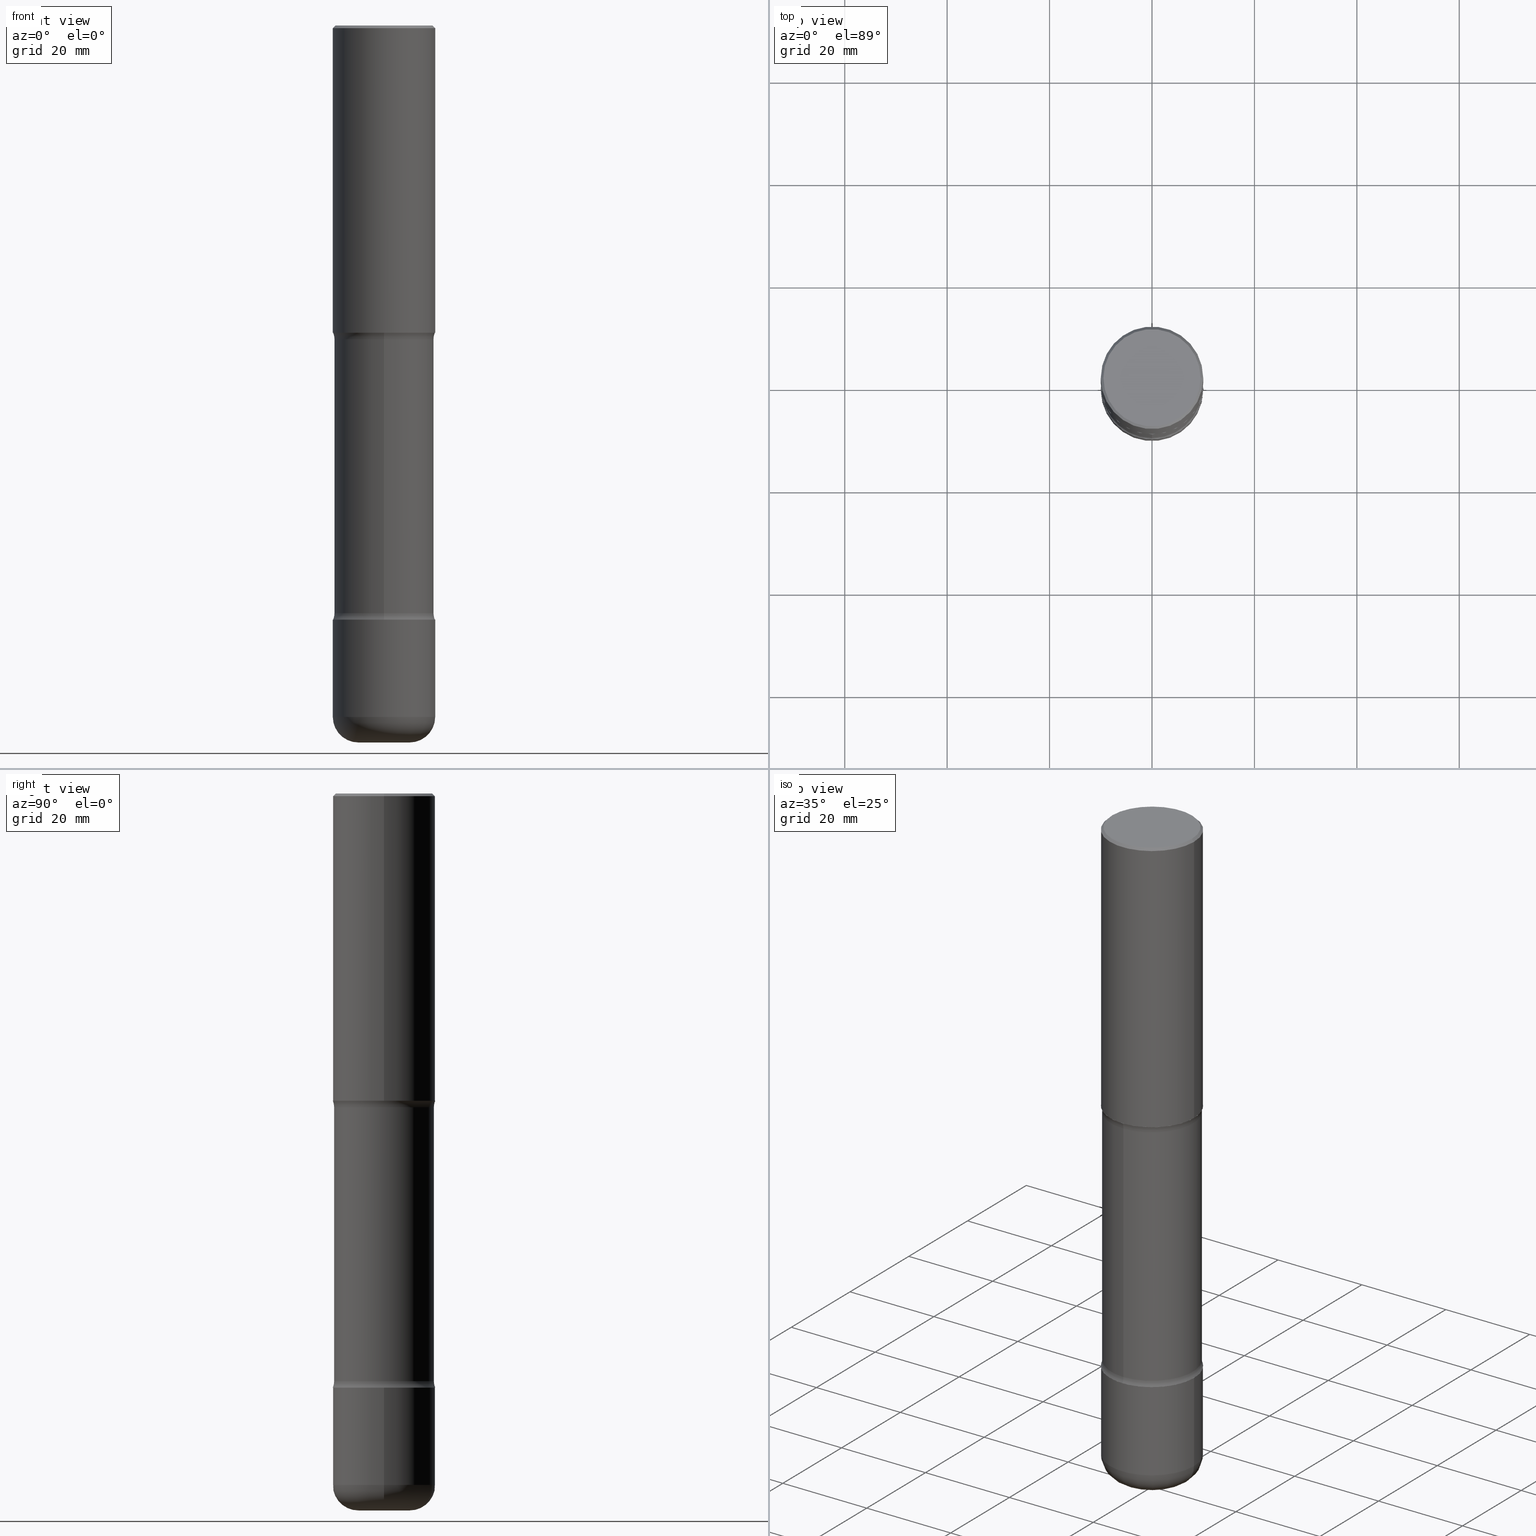
[diagram: canonical four-view strip — front | top / right | iso, engineering-drawing reading convention]
A machine part, canonical four-view strip (front | top / right | iso — engineering-drawing reading convention). The complete STEP part file that produces these views, byte-faithful:
ISO-10303-21;
HEADER;
FILE_DESCRIPTION (( 'STEP AP203' ),
    '1' );
FILE_NAME ('46943.STEP',
    '2024-03-02T06:10:01',
    ( '' ),
    ( '' ),
    'SwSTEP 2.0',
    'SolidWorks 2023',
    '' );
FILE_SCHEMA (( 'CONFIG_CONTROL_DESIGN' ));
ENDSEC;

DATA;
#1 = ADVANCED_BREP_SHAPE_REPRESENTATION ( '46943', ( #486, #104, #484, #470 ), #137 ) ;
#2 = ORIENTED_EDGE ( 'NONE', *, *, #350, .T. ) ;
#3 = EDGE_CURVE ( 'NONE', #74, #17, #419, .T. ) ;
#4 = AXIS2_PLACEMENT_3D ( 'NONE', #15, #144, #134 ) ;
#5 = AXIS2_PLACEMENT_3D ( 'NONE', #487, #259, #165 ) ;
#6 = CYLINDRICAL_SURFACE ( 'NONE', #523, 0.3835000000000001741 ) ;
#7 = LINE ( 'NONE', #211, #413 ) ;
#8 = PLANE ( 'NONE',  #365 ) ;
#9 = FACE_OUTER_BOUND ( 'NONE', #406, .T. ) ;
#10 = CARTESIAN_POINT ( 'NONE',  ( 2.677966186892819583E-15, 0.3834999999999810227, -5.511800000000000921 ) ) ;
#11 = EDGE_CURVE ( 'NONE', #288, #30, #324, .T. ) ;
#12 = CIRCLE ( 'NONE', #291, 0.1250000000000000278 ) ;
#13 = CARTESIAN_POINT ( 'NONE',  ( 1.356902450771305887E-28, -1.911533349202580181E-14, -5.511800000000000033 ) ) ;
#14 = SECURITY_CLASSIFICATION ( '', '', #113 ) ;
#15 = CARTESIAN_POINT ( 'NONE',  ( 0.1968000000000004746, -1.993112122278608958E-14, -5.314899999999998847 ) ) ;
#16 = FACE_OUTER_BOUND ( 'NONE', #73, .T. ) ;
#17 = VERTEX_POINT ( 'NONE', #467 ) ;
#18 = EDGE_CURVE ( 'NONE', #138, #17, #416, .T. ) ;
#19 = DIRECTION ( 'NONE',  ( -2.445468806185136597E-29, 3.491481338843145583E-15, 1.000000000000000000 ) ) ;
#20 = CALENDAR_DATE ( 2024, 2, 3 ) ;
#21 = DIRECTION ( 'NONE',  ( 2.540811743831259279E-29, -3.354944825550891508E-15, -1.000000000000000000 ) ) ;
#22 = ORIENTED_EDGE ( 'NONE', *, *, #89, .T. ) ;
#23 = ORIENTED_EDGE ( 'NONE', *, *, #224, .T. ) ;
#24 = DIRECTION ( 'NONE',  ( 6.982962677686265133E-15, 1.000000000000000000, -2.849385130288669478E-15 ) ) ;
#25 = CARTESIAN_POINT ( 'NONE',  ( 5.566483839342124878E-29, -8.548599269470712439E-15, -2.362200000000000077 ) ) ;
#26 = ORIENTED_EDGE ( 'NONE', *, *, #287, .F. ) ;
#27 = ADVANCED_FACE ( 'NONE', ( #380 ), #166, .F. ) ;
#28 = DIRECTION ( 'NONE',  ( 2.540811743831259279E-29, -3.354944825550891508E-15, -1.000000000000000000 ) ) ;
#29 = PRODUCT_DEFINITION_SHAPE ( 'NONE', 'NONE',  #427 ) ;
#30 = VERTEX_POINT ( 'NONE', #128 ) ;
#31 = CONICAL_SURFACE ( 'NONE', #273, 0.3937000000000000499, 0.7853981633974473908 ) ;
#32 = ORIENTED_EDGE ( 'NONE', *, *, #187, .T. ) ;
#33 = ADVANCED_FACE ( 'NONE', ( #481 ), #261, .T. ) ;
#34 = VERTEX_POINT ( 'NONE', #123 ) ;
#35 = ORIENTED_EDGE ( 'NONE', *, *, #498, .F. ) ;
#36 = CIRCLE ( 'NONE', #239, 0.3835000000000002296 ) ;
#37 = PERSON_AND_ORGANIZATION ( #316, #531 ) ;
#38 = ORIENTED_EDGE ( 'NONE', *, *, #423, .F. ) ;
#39 = EDGE_CURVE ( 'NONE', #133, #442, #290, .T. ) ;
#40 = LINE ( 'NONE', #172, #403 ) ;
#41 = AXIS2_PLACEMENT_3D ( 'NONE', #100, #178, #232 ) ;
#42 = CARTESIAN_POINT ( 'NONE',  ( 0.3937000000000004385, -2.749192406205086372E-15, 1.919750796630862133E-29 ) ) ;
#43 = DIRECTION ( 'NONE',  ( 1.000000000000000000, -6.982962677686266711E-15, 0.000000000000000000 ) ) ;
#44 = CARTESIAN_POINT ( 'NONE',  ( 1.347893496593123422E-28, -1.924434684343564562E-14, -5.511799999999999145 ) ) ;
#45 = ADVANCED_FACE ( 'NONE', ( #425 ), #375, .T. ) ;
#46 = LINE ( 'NONE', #10, #429 ) ;
#47 = DIRECTION ( 'NONE',  ( 2.540811743831259279E-29, -3.354944825550891508E-15, -1.000000000000000000 ) ) ;
#48 = TOROIDAL_SURFACE ( 'NONE', #356, 0.5085000000000001741, 0.1249999999999999584 ) ;
#49 = CARTESIAN_POINT ( 'NONE',  ( 5.692143870584579365E-29, -8.714523593702518262E-15, -2.411656647682592247 ) ) ;
#50 = EDGE_LOOP ( 'NONE', ( #90, #547, #234, #103 ) ) ;
#51 = ADVANCED_FACE ( 'NONE', ( #417 ), #474, .F. ) ;
#52 = CARTESIAN_POINT ( 'NONE',  ( 2.749192406205197601E-15, 0.3936999999999844513, -4.566900000000001292 ) ) ;
#53 = ORIENTED_EDGE ( 'NONE', *, *, #39, .F. ) ;
#54 = CARTESIAN_POINT ( 'NONE',  ( 1.104255145972444542E-28, -1.577932180213095535E-14, -4.517443352317408234 ) ) ;
#55 = LENGTH_MEASURE_WITH_UNIT ( LENGTH_MEASURE( 0.02539999999999999897 ), #443 );
#56 = ORIENTED_EDGE ( 'NONE', *, *, #238, .F. ) ;
#57 = DIRECTION ( 'NONE',  ( 1.000000000000000000, -6.982962677686266711E-15, 4.876176775795935793E-29 ) ) ;
#58 = AXIS2_PLACEMENT_3D ( 'NONE', #303, #297, #351 ) ;
#59 = TOROIDAL_SURFACE ( 'NONE', #5, 0.5085000000000002851, 0.1250000000000000278 ) ;
#60 = EDGE_LOOP ( 'NONE', ( #22, #444, #260, #332 ) ) ;
#61 = DIRECTION ( 'NONE',  ( 2.540811743831259279E-29, -3.354944825550891508E-15, -1.000000000000000000 ) ) ;
#62 = ADVANCED_FACE ( 'NONE', ( #9 ), #254, .F. ) ;
#63 = ORIENTED_EDGE ( 'NONE', *, *, #447, .T. ) ;
#64 = DIRECTION ( 'NONE',  ( 2.438088387897960049E-29, -3.491481338843145188E-15, -1.000000000000000000 ) ) ;
#65 = ORIENTED_EDGE ( 'NONE', *, *, #350, .F. ) ;
#66 = DIRECTION ( 'NONE',  ( -2.445468806185136877E-29, 3.491481338843145188E-15, 1.000000000000000000 ) ) ;
#67 = DIRECTION ( 'NONE',  ( 1.000000000000000000, -6.982962677686266711E-15, 4.876176775795935793E-29 ) ) ;
#68 = EDGE_LOOP ( 'NONE', ( #508, #196 ) ) ;
#69 = CIRCLE ( 'NONE', #384, 0.3937000000000004940 ) ;
#70 = AXIS2_PLACEMENT_3D ( 'NONE', #528, #545, #270 ) ;
#71 = ADVANCED_FACE ( 'NONE', ( #304 ), #8, .F. ) ;
#72 = PERSON_AND_ORGANIZATION_ROLE ( 'design_supplier' ) ;
#73 = EDGE_LOOP ( 'NONE', ( #319, #241, #114, #53 ) ) ;
#74 = VERTEX_POINT ( 'NONE', #82 ) ;
#75 = DATE_TIME_ROLE ( 'classification_date' ) ;
#76 = VERTEX_POINT ( 'NONE', #86 ) ;
#77 = CIRCLE ( 'NONE', #310, 0.3937000000000003830 ) ;
#78 = CARTESIAN_POINT ( 'NONE',  ( 0.000000000000000000, 0.000000000000000000, 0.000000000000000000 ) ) ;
#79 = AXIS2_PLACEMENT_3D ( 'NONE', #183, #307, #236 ) ;
#80 = PERSON_AND_ORGANIZATION_ROLE ( 'classification_officer' ) ;
#81 = ADVANCED_FACE ( 'NONE', ( #524 ), #431, .T. ) ;
#82 = CARTESIAN_POINT ( 'NONE',  ( -0.3937000000000003830, -1.445365339640257918E-14, -4.566900000000000404 ) ) ;
#83 = CARTESIAN_POINT ( 'NONE',  ( -2.665989521933907346E-15, -0.3835000000000159392, -4.517443352317407346 ) ) ;
#84 = AXIS2_PLACEMENT_3D ( 'NONE', #185, #362, #229 ) ;
#85 = ADVANCED_FACE ( 'NONE', ( #212 ), #6, .T. ) ;
#86 = CARTESIAN_POINT ( 'NONE',  ( -0.3937000000000005495, -1.575946741712991118E-14, -5.314899999999998847 ) ) ;
#87 = CARTESIAN_POINT ( 'NONE',  ( 3.550836521603578073E-15, 0.5084999999999842979, -4.517443352317410010 ) ) ;
#88 = DIRECTION ( 'NONE',  ( -2.445468806185136597E-29, 3.491481338843145583E-15, 1.000000000000000000 ) ) ;
#89 = EDGE_CURVE ( 'NONE', #181, #145, #514, .T. ) ;
#90 = ORIENTED_EDGE ( 'NONE', *, *, #162, .T. ) ;
#91 = AXIS2_PLACEMENT_3D ( 'NONE', #87, #434, #521 ) ;
#92 = CIRCLE ( 'NONE', #58, 0.3937000000000000499 ) ;
#93 = DIRECTION ( 'NONE',  ( -6.982962677686265133E-15, -1.000000000000000000, 0.000000000000000000 ) ) ;
#94 = ORIENTED_EDGE ( 'NONE', *, *, #287, .T. ) ;
#95 = EDGE_LOOP ( 'NONE', ( #247, #557 ) ) ;
#96 = DIRECTION ( 'NONE',  ( 2.540811743831259279E-29, -3.354944825550891508E-15, -1.000000000000000000 ) ) ;
#97 = FACE_OUTER_BOUND ( 'NONE', #50, .T. ) ;
#98 = ORIENTED_EDGE ( 'NONE', *, *, #173, .T. ) ;
#99 = ADVANCED_FACE ( 'NONE', ( #294 ), #31, .T. ) ;
#100 = CARTESIAN_POINT ( 'NONE',  ( -2.087702828670435750E-46, 2.980686340760889474E-32, 8.537024980200807150E-18 ) ) ;
#101 = CIRCLE ( 'NONE', #4, 0.1969000000000001582 ) ;
#102 = DIRECTION ( 'NONE',  ( 1.000000000000000000, 0.000000000000000000, 0.000000000000000000 ) ) ;
#103 = ORIENTED_EDGE ( 'NONE', *, *, #439, .F. ) ;
#104 = MANIFOLD_SOLID_BREP ( 'Body-Move/Copy2[2]', #450 ) ;
#105 = DIRECTION ( 'NONE',  ( 2.540811743831259279E-29, -3.354944825550891508E-15, -1.000000000000000000 ) ) ;
#106 = CARTESIAN_POINT ( 'NONE',  ( 0.000000000000000000, 0.000000000000000000, 0.000000000000000000 ) ) ;
#107 = ORIENTED_EDGE ( 'NONE', *, *, #39, .T. ) ;
#108 = PRODUCT ( '46943', '46943', '', ( #405 ) ) ;
#109 = CARTESIAN_POINT ( 'NONE',  ( -0.3937000000000001054, 2.797406750687515181E-15, -1.936584745033357016E-29 ) ) ;
#110 = CALENDAR_DATE ( 2024, 2, 3 ) ;
#111 = ORIENTED_EDGE ( 'NONE', *, *, #3, .F. ) ;
#112 = ADVANCED_FACE ( 'NONE', ( #301 ), #389, .T. ) ;
#113 = SECURITY_CLASSIFICATION_LEVEL ( 'unclassified' ) ;
#114 = ORIENTED_EDGE ( 'NONE', *, *, #121, .T. ) ;
#115 = AXIS2_PLACEMENT_3D ( 'NONE', #78, #459, #67 ) ;
#116 = AXIS2_PLACEMENT_3D ( 'NONE', #25, #21, #149 ) ;
#117 = APPROVAL_STATUS ( 'not_yet_approved' ) ;
#118 = ORIENTED_EDGE ( 'NONE', *, *, #278, .F. ) ;
#119 = DATE_AND_TIME ( #110, #377 ) ;
#120 = CARTESIAN_POINT ( 'NONE',  ( 1.116821149096690103E-28, -1.594524612636276117E-14, -4.566900000000000404 ) ) ;
#121 = EDGE_CURVE ( 'NONE', #488, #442, #320, .T. ) ;
#122 = CC_DESIGN_APPROVAL ( #126, ( #427 ) ) ;
#123 = CARTESIAN_POINT ( 'NONE',  ( 0.3937000000000002164, -1.099676962482036442E-14, -2.362200000000000077 ) ) ;
#124 = CARTESIAN_POINT ( 'NONE',  ( 1.356902450771305887E-28, -1.911533349202580181E-14, -5.511800000000000033 ) ) ;
#125 = DIRECTION ( 'NONE',  ( 2.540811743831259279E-29, -3.354944825550891508E-15, -1.000000000000000000 ) ) ;
#126 = APPROVAL ( #549, 'UNSPECIFIED' ) ;
#127 = DIRECTION ( 'NONE',  ( 1.000000000000000000, -6.982962677686265922E-15, 4.876176775795935793E-29 ) ) ;
#128 = CARTESIAN_POINT ( 'NONE',  ( -0.3937000000000000499, 2.679362779428219918E-15, -0.02000000000000008715 ) ) ;
#129 = CARTESIAN_POINT ( 'NONE',  ( 5.776686413970530874E-29, -8.247577218615279626E-15, -2.362200000000000077 ) ) ;
#130 = CIRCLE ( 'NONE', #420, 0.3937000000000000499 ) ;
#131 = DIRECTION ( 'NONE',  ( -1.000000000000000000, 6.982962677686265922E-15, 0.000000000000000000 ) ) ;
#132 = DIRECTION ( 'NONE',  ( -1.000000000000000000, 6.982962677686265922E-15, 0.000000000000000000 ) ) ;
#133 = VERTEX_POINT ( 'NONE', #52 ) ;
#134 = DIRECTION ( 'NONE',  ( 1.000000000000000000, -6.982962677686269077E-15, 0.000000000000000000 ) ) ;
#135 = EDGE_CURVE ( 'NONE', #442, #488, #148, .T. ) ;
#136 = CIRCLE ( 'NONE', #437, 0.3937000000000003830 ) ;
#137 =( GEOMETRIC_REPRESENTATION_CONTEXT ( 3 ) GLOBAL_UNCERTAINTY_ASSIGNED_CONTEXT ( ( #230 ) ) GLOBAL_UNIT_ASSIGNED_CONTEXT ( ( #264, #179, #318 ) ) REPRESENTATION_CONTEXT ( 'NONE', 'WORKASPACE' ) );
#138 = VERTEX_POINT ( 'NONE', #448 ) ;
#139 = CARTESIAN_POINT ( 'NONE',  ( 0.3937000000000000499, -2.770807688499515734E-15, -0.02000000000000008715 ) ) ;
#140 = FACE_OUTER_BOUND ( 'NONE', #286, .T. ) ;
#141 = ORIENTED_EDGE ( 'NONE', *, *, #152, .F. ) ;
#142 = DIRECTION ( 'NONE',  ( 1.000000000000000000, -6.860497997771530774E-15, 4.842470969663844004E-29 ) ) ;
#143 = EDGE_CURVE ( 'NONE', #541, #364, #36, .T. ) ;
#144 = DIRECTION ( 'NONE',  ( -6.982962677686266711E-15, -1.000000000000000000, 3.491481338843145583E-15 ) ) ;
#145 = VERTEX_POINT ( 'NONE', #399 ) ;
#146 = DIRECTION ( 'NONE',  ( 1.000000000000000000, -6.982962677686269866E-15, 0.000000000000000000 ) ) ;
#147 = VECTOR ( 'NONE', #302, 39.37007874015748143 ) ;
#148 = CIRCLE ( 'NONE', #491, 0.3835000000000001741 ) ;
#149 = DIRECTION ( 'NONE',  ( 6.982962677686265922E-15, 1.000000000000000000, -3.469453890861391234E-15 ) ) ;
#150 = CC_DESIGN_APPROVAL ( #407, ( #14 ) ) ;
#151 = ORIENTED_EDGE ( 'NONE', *, *, #308, .T. ) ;
#152 = EDGE_CURVE ( 'NONE', #288, #194, #469, .T. ) ;
#153 = DIRECTION ( 'NONE',  ( -2.445468806185136597E-29, 3.491481338843145583E-15, 1.000000000000000000 ) ) ;
#154 = DIRECTION ( 'NONE',  ( -2.445468806185136597E-29, 3.491481338843145583E-15, 1.000000000000000000 ) ) ;
#155 = VERTEX_POINT ( 'NONE', #502 ) ;
#156 = DATE_AND_TIME ( #333, #285 ) ;
#157 = AXIS2_PLACEMENT_3D ( 'NONE', #476, #296, #479 ) ;
#158 = VERTEX_POINT ( 'NONE', #139 ) ;
#159 = AXIS2_PLACEMENT_3D ( 'NONE', #190, #495, #368 ) ;
#160 = DATE_AND_TIME ( #509, #493 ) ;
#161 = ORIENTED_EDGE ( 'NONE', *, *, #308, .F. ) ;
#162 = EDGE_CURVE ( 'NONE', #34, #199, #177, .T. ) ;
#163 = DIRECTION ( 'NONE',  ( 1.000000000000000000, -6.982962677686264344E-15, 0.000000000000000000 ) ) ;
#164 = ADVANCED_FACE ( 'NONE', ( #97 ), #217, .T. ) ;
#165 = DIRECTION ( 'NONE',  ( 6.982962677686265133E-15, 1.000000000000000000, -3.354944825550891508E-15 ) ) ;
#166 = PLANE ( 'NONE',  #468 ) ;
#167 = CARTESIAN_POINT ( 'NONE',  ( 1.347893496593123422E-28, -1.924434684343564562E-14, -5.511799999999999145 ) ) ;
#168 = DIRECTION ( 'NONE',  ( 1.000000000000000000, -6.982962677686265922E-15, 0.000000000000000000 ) ) ;
#169 = AXIS2_PLACEMENT_3D ( 'NONE', #44, #210, #163 ) ;
#170 = AXIS2_PLACEMENT_3D ( 'NONE', #209, #387, #175 ) ;
#171 = APPLICATION_CONTEXT ( 'configuration controlled 3d designs of mechanical parts and assemblies' ) ;
#172 = CARTESIAN_POINT ( 'NONE',  ( 0.3937000000000001054, -2.749192406205084005E-15, 1.919750796630860452E-29 ) ) ;
#173 = EDGE_CURVE ( 'NONE', #334, #133, #478, .T. ) ;
#174 = DIRECTION ( 'NONE',  ( 6.982962677686265133E-15, 1.000000000000000000, -2.849385130288669478E-15 ) ) ;
#175 = DIRECTION ( 'NONE',  ( 6.982962677686265922E-15, 1.000000000000000000, -3.354944825550891508E-15 ) ) ;
#176 = CARTESIAN_POINT ( 'NONE',  ( 1.116821149096690103E-28, -1.594524612636276117E-14, -4.566900000000000404 ) ) ;
#177 = CIRCLE ( 'NONE', #246, 0.3937000000000002164 ) ;
#178 = DIRECTION ( 'NONE',  ( -2.445468806185136597E-29, 3.491481338843145583E-15, 1.000000000000000000 ) ) ;
#179 =( NAMED_UNIT ( * ) PLANE_ANGLE_UNIT ( ) SI_UNIT ( $, .RADIAN. ) );
#180 = EDGE_CURVE ( 'NONE', #541, #354, #12, .T. ) ;
#181 = VERTEX_POINT ( 'NONE', #358 ) ;
#182 = CARTESIAN_POINT ( 'NONE',  ( -3.488563231866767784E-15, -0.5085000000000089448, -2.411656647682590915 ) ) ;
#183 = CARTESIAN_POINT ( 'NONE',  ( 1.299742215799337779E-28, -1.855687416781742833E-14, -5.314899999999998847 ) ) ;
#184 = EDGE_LOOP ( 'NONE', ( #222, #219 ) ) ;
#185 = CARTESIAN_POINT ( 'NONE',  ( 1.116821149096690103E-28, -1.594524612636276117E-14, -4.566900000000000404 ) ) ;
#186 = ORIENTED_EDGE ( 'NONE', *, *, #135, .F. ) ;
#187 = EDGE_CURVE ( 'NONE', #181, #138, #101, .T. ) ;
#188 = LINE ( 'NONE', #109, #329 ) ;
#189 = VECTOR ( 'NONE', #96, 39.37007874015748143 ) ;
#190 = CARTESIAN_POINT ( 'NONE',  ( 5.706867177328101734E-29, -8.693438980447217573E-15, -2.411656647682592691 ) ) ;
#191 = LOCAL_TIME ( 1, 10, 1.000000000000000000, #331 ) ;
#192 = EDGE_LOOP ( 'NONE', ( #35, #520, #237, #500 ) ) ;
#193 = CARTESIAN_POINT ( 'NONE',  ( 1.104726680180063437E-28, -1.577256916389725054E-14, -4.517443352317408234 ) ) ;
#194 = VERTEX_POINT ( 'NONE', #263 ) ;
#195 = PERSON_AND_ORGANIZATION_ROLE ( 'creator' ) ;
#196 = ORIENTED_EDGE ( 'NONE', *, *, #3, .T. ) ;
#197 = COORDINATED_UNIVERSAL_TIME_OFFSET ( 5, 0, .BEHIND. ) ;
#198 = AXIS2_PLACEMENT_3D ( 'NONE', #49, #385, #388 ) ;
#199 = VERTEX_POINT ( 'NONE', #220 ) ;
#200 = CC_DESIGN_PERSON_AND_ORGANIZATION_ASSIGNMENT ( #245, #80, ( #14 ) ) ;
#201 = CIRCLE ( 'NONE', #70, 0.3736999999999999766 ) ;
#202 = APPROVAL_DATE_TIME ( #119, #407 ) ;
#203 = ORIENTED_EDGE ( 'NONE', *, *, #265, .F. ) ;
#204 = DIRECTION ( 'NONE',  ( 2.445468806185136597E-29, -3.491481338843145583E-15, -1.000000000000000000 ) ) ;
#205 = EDGE_CURVE ( 'NONE', #17, #74, #77, .T. ) ;
#206 = DIRECTION ( 'NONE',  ( -2.445468806185136597E-29, 3.491481338843145583E-15, 1.000000000000000000 ) ) ;
#207 = CIRCLE ( 'NONE', #540, 0.1968000000000005023 ) ;
#208 = TOROIDAL_SURFACE ( 'NONE', #79, 0.1968000000000004746, 0.1969000000000001582 ) ;
#209 = CARTESIAN_POINT ( 'NONE',  ( 5.776686413970530874E-29, -8.247577218615279626E-15, -2.362200000000000077 ) ) ;
#210 = DIRECTION ( 'NONE',  ( -2.445468806185136597E-29, 3.491481338843145583E-15, 1.000000000000000000 ) ) ;
#211 = CARTESIAN_POINT ( 'NONE',  ( 0.3937000000000000499, -2.770807688499515734E-15, -0.02000000000000008715 ) ) ;
#212 = FACE_OUTER_BOUND ( 'NONE', #306, .T. ) ;
#213 = FACE_OUTER_BOUND ( 'NONE', #457, .T. ) ;
#214 = APPROVAL ( #117, 'UNSPECIFIED' ) ;
#215 = AXIS2_PLACEMENT_3D ( 'NONE', #269, #533, #57 ) ;
#216 = CIRCLE ( 'NONE', #116, 0.3937000000000005495 ) ;
#217 = CYLINDRICAL_SURFACE ( 'NONE', #215, 0.3937000000000001054 ) ;
#218 = FACE_OUTER_BOUND ( 'NONE', #184, .T. ) ;
#219 = ORIENTED_EDGE ( 'NONE', *, *, #224, .F. ) ;
#220 = CARTESIAN_POINT ( 'NONE',  ( -0.3937000000000002720, -1.361296672008554112E-15, -2.362200000000000077 ) ) ;
#221 = PERSON_AND_ORGANIZATION_ROLE ( 'design_owner' ) ;
#222 = ORIENTED_EDGE ( 'NONE', *, *, #552, .F. ) ;
#223 = DIRECTION ( 'NONE',  ( -2.445468806185136597E-29, 3.491481338843145583E-15, 1.000000000000000000 ) ) ;
#224 = EDGE_CURVE ( 'NONE', #155, #354, #253, .T. ) ;
#225 = DIRECTION ( 'NONE',  ( 2.540811743831259279E-29, -3.354944825550891508E-15, -1.000000000000000000 ) ) ;
#226 = DIRECTION ( 'NONE',  ( 1.000000000000000000, -6.982962677686266711E-15, 4.883557194083112340E-29 ) ) ;
#227 = CARTESIAN_POINT ( 'NONE',  ( -0.3937000000000004385, 2.797406750687517547E-15, -1.936584745033358417E-29 ) ) ;
#228 = CIRCLE ( 'NONE', #560, 0.3937000000000002164 ) ;
#229 = DIRECTION ( 'NONE',  ( 6.982962677686265133E-15, 1.000000000000000000, -2.775563112689113934E-15 ) ) ;
#230 = UNCERTAINTY_MEASURE_WITH_UNIT (LENGTH_MEASURE( 1.000000000000000082E-05 ), #264, 'distance_accuracy_value', 'NONE');
#231 = APPLICATION_PROTOCOL_DEFINITION ( 'international standard', 'config_control_design', 1994, #446 ) ;
#232 = DIRECTION ( 'NONE',  ( 1.000000000000000000, -6.982962677686266711E-15, 4.876212485538975679E-29 ) ) ;
#233 = PERSON_AND_ORGANIZATION ( #316, #531 ) ;
#234 = ORIENTED_EDGE ( 'NONE', *, *, #412, .F. ) ;
#235 = CARTESIAN_POINT ( 'NONE',  ( 5.566483839342124878E-29, -8.548599269470712439E-15, -2.362200000000000077 ) ) ;
#236 = DIRECTION ( 'NONE',  ( 1.000000000000000000, -6.982962677686266711E-15, 4.883557194083112340E-29 ) ) ;
#237 = ORIENTED_EDGE ( 'NONE', *, *, #412, .T. ) ;
#238 = EDGE_CURVE ( 'NONE', #199, #30, #188, .T. ) ;
#239 = AXIS2_PLACEMENT_3D ( 'NONE', #276, #61, #548 ) ;
#240 = TOROIDAL_SURFACE ( 'NONE', #480, 0.5085000000000001741, 0.1249999999999999584 ) ;
#241 = ORIENTED_EDGE ( 'NONE', *, *, #485, .T. ) ;
#242 = DIRECTION ( 'NONE',  ( -0.7071067811865469066, 2.468850131082250355E-15, -0.7071067811865481278 ) ) ;
#243 = ADVANCED_FACE ( 'NONE', ( #280 ), #48, .F. ) ;
#244 = ORIENTED_EDGE ( 'NONE', *, *, #423, .T. ) ;
#245 = PERSON_AND_ORGANIZATION ( #316, #531 ) ;
#246 = AXIS2_PLACEMENT_3D ( 'NONE', #544, #455, #314 ) ;
#247 = ORIENTED_EDGE ( 'NONE', *, *, #152, .T. ) ;
#248 = AXIS2_PLACEMENT_3D ( 'NONE', #499, #64, #400 ) ;
#249 = ADVANCED_FACE ( 'NONE', ( #411 ), #555, .T. ) ;
#250 = CARTESIAN_POINT ( 'NONE',  ( 2.749192406205143170E-15, 0.3936999999999920563, -2.362200000000001854 ) ) ;
#251 = CARTESIAN_POINT ( 'NONE',  ( 2.677966186892794339E-15, 0.3834999999999843534, -4.517443352317409122 ) ) ;
#252 = AXIS2_PLACEMENT_3D ( 'NONE', #489, #317, #174 ) ;
#253 = CIRCLE ( 'NONE', #347, 0.3937000000000005495 ) ;
#254 = PLANE ( 'NONE',  #157 ) ;
#255 = CARTESIAN_POINT ( 'NONE',  ( 4.890937612370294178E-31, -6.982962677686321191E-17, -0.02000000000000008715 ) ) ;
#256 = DIRECTION ( 'NONE',  ( 2.438088387897960049E-29, -3.491481338843145188E-15, -1.000000000000000000 ) ) ;
#257 = EDGE_CURVE ( 'NONE', #138, #76, #69, .T. ) ;
#258 = DIRECTION ( 'NONE',  ( -2.445468806185136877E-29, 3.491481338843145188E-15, 1.000000000000000000 ) ) ;
#259 = DIRECTION ( 'NONE',  ( 2.540811743831259279E-29, -3.354944825550891508E-15, -1.000000000000000000 ) ) ;
#260 = ORIENTED_EDGE ( 'NONE', *, *, #257, .F. ) ;
#261 = CONICAL_SURFACE ( 'NONE', #336, 0.3937000000000000499, 0.7853981633974473908 ) ;
#262 = CIRCLE ( 'NONE', #529, 0.3937000000000004940 ) ;
#263 = CARTESIAN_POINT ( 'NONE',  ( 0.3736999999999999766, -2.667287895133368359E-15, 8.537024980219259100E-18 ) ) ;
#264 =( CONVERSION_BASED_UNIT ( 'INCH', #55 ) LENGTH_UNIT ( ) NAMED_UNIT ( #536 ) );
#265 = EDGE_CURVE ( 'NONE', #133, #334, #136, .T. ) ;
#266 = FACE_OUTER_BOUND ( 'NONE', #271, .T. ) ;
#267 = EDGE_LOOP ( 'NONE', ( #161, #510, #535, #111 ) ) ;
#268 = CARTESIAN_POINT ( 'NONE',  ( -0.3736999999999999766, 2.644447966039789058E-15, 8.537024980182435319E-18 ) ) ;
#269 = CARTESIAN_POINT ( 'NONE',  ( 0.000000000000000000, 0.000000000000000000, 0.000000000000000000 ) ) ;
#270 = DIRECTION ( 'NONE',  ( 1.000000000000000000, -6.982962677686266711E-15, 4.876212485538975679E-29 ) ) ;
#271 = EDGE_LOOP ( 'NONE', ( #372, #554, #357, #374 ) ) ;
#272 = CARTESIAN_POINT ( 'NONE',  ( 1.299742215799337779E-28, -1.855687416781742833E-14, -5.314899999999998847 ) ) ;
#273 = AXIS2_PLACEMENT_3D ( 'NONE', #428, #343, #131 ) ;
#274 = DIRECTION ( 'NONE',  ( -1.000000000000000000, 6.982962677686265922E-15, -4.883557194083112901E-29 ) ) ;
#275 = DIRECTION ( 'NONE',  ( -2.445468806185136597E-29, 3.491481338843145583E-15, 1.000000000000000000 ) ) ;
#276 = CARTESIAN_POINT ( 'NONE',  ( 5.692143870584579365E-29, -8.714523593702518262E-15, -2.411656647682592247 ) ) ;
#277 = COORDINATED_UNIVERSAL_TIME_OFFSET ( 5, 0, .BEHIND. ) ;
#278 = EDGE_CURVE ( 'NONE', #76, #138, #262, .T. ) ;
#279 = ORIENTED_EDGE ( 'NONE', *, *, #386, .F. ) ;
#280 = FACE_OUTER_BOUND ( 'NONE', #369, .T. ) ;
#281 = ORIENTED_EDGE ( 'NONE', *, *, #135, .T. ) ;
#282 = PRODUCT_RELATED_PRODUCT_CATEGORY ( 'detail', '', ( #108 ) ) ;
#283 = VECTOR ( 'NONE', #402, 39.37007874015748143 ) ;
#284 = APPROVAL_DATE_TIME ( #156, #214 ) ;
#285 = LOCAL_TIME ( 1, 10, 1.000000000000000000, #463 ) ;
#286 = EDGE_LOOP ( 'NONE', ( #279, #2, #32, #118 ) ) ;
#287 = EDGE_CURVE ( 'NONE', #364, #488, #506, .T. ) ;
#288 = VERTEX_POINT ( 'NONE', #268 ) ;
#289 = CARTESIAN_POINT ( 'NONE',  ( -0.3937000000000000499, 2.679362779428219918E-15, -0.02000000000000008715 ) ) ;
#290 = CIRCLE ( 'NONE', #91, 0.1249999999999999584 ) ;
#291 = AXIS2_PLACEMENT_3D ( 'NONE', #393, #274, #93 ) ;
#292 = LOCAL_TIME ( 1, 10, 1.000000000000000000, #277 ) ;
#293 = DIRECTION ( 'NONE',  ( 6.982962677686265133E-15, 1.000000000000000000, -3.354944825550891508E-15 ) ) ;
#294 = FACE_OUTER_BOUND ( 'NONE', #327, .T. ) ;
#295 = CARTESIAN_POINT ( 'NONE',  ( 1.104726680180063437E-28, -1.577256916389725054E-14, -4.517443352317408234 ) ) ;
#296 = DIRECTION ( 'NONE',  ( -2.540811743831258719E-29, 3.354944825550891508E-15, 1.000000000000000000 ) ) ;
#297 = DIRECTION ( 'NONE',  ( -2.445468806185136597E-29, 3.491481338843145583E-15, 1.000000000000000000 ) ) ;
#298 = CIRCLE ( 'NONE', #376, 0.1969000000000001582 ) ;
#299 = APPROVAL_PERSON_ORGANIZATION ( #553, #214, #511 ) ;
#300 = CC_DESIGN_PERSON_AND_ORGANIZATION_ASSIGNMENT ( #37, #72, ( #440 ) ) ;
#301 = FACE_OUTER_BOUND ( 'NONE', #309, .T. ) ;
#302 = DIRECTION ( 'NONE',  ( -2.445468806185136877E-29, 3.491481338843145188E-15, 1.000000000000000000 ) ) ;
#303 = CARTESIAN_POINT ( 'NONE',  ( 4.890937612370294178E-31, -6.982962677686321191E-17, -0.02000000000000008715 ) ) ;
#304 = FACE_OUTER_BOUND ( 'NONE', #558, .T. ) ;
#305 = CARTESIAN_POINT ( 'NONE',  ( 1.116821149096690103E-28, -1.594524612636276117E-14, -4.566900000000000404 ) ) ;
#306 = EDGE_LOOP ( 'NONE', ( #492, #94, #186, #512 ) ) ;
#307 = DIRECTION ( 'NONE',  ( -2.445468806185136597E-29, 3.491481338843145583E-15, 1.000000000000000000 ) ) ;
#308 = EDGE_CURVE ( 'NONE', #76, #74, #445, .T. ) ;
#309 = EDGE_LOOP ( 'NONE', ( #26, #244, #63, #378 ) ) ;
#310 = AXIS2_PLACEMENT_3D ( 'NONE', #395, #19, #367 ) ;
#311 = PERSON_AND_ORGANIZATION ( #316, #531 ) ;
#312 = ORIENTED_EDGE ( 'NONE', *, *, #257, .T. ) ;
#313 = CARTESIAN_POINT ( 'NONE',  ( 0.000000000000000000, 0.000000000000000000, 0.000000000000000000 ) ) ;
#314 = DIRECTION ( 'NONE',  ( 1.000000000000000000, -6.982962677686266711E-15, 0.000000000000000000 ) ) ;
#315 = DIRECTION ( 'NONE',  ( 6.860497997771532351E-15, 1.000000000000000000, 0.000000000000000000 ) ) ;
#316 = PERSON ( 'UNSPECIFIED', 'UNSPECIFIED', 'UNSPECIFIED', ('UNSPECIFIED'), ('UNSPECIFIED'), ('UNSPECIFIED') ) ;
#317 = DIRECTION ( 'NONE',  ( 2.540811743831259279E-29, -3.354944825550891508E-15, -1.000000000000000000 ) ) ;
#318 =( NAMED_UNIT ( * ) SI_UNIT ( $, .STERADIAN. ) SOLID_ANGLE_UNIT ( ) );
#319 = ORIENTED_EDGE ( 'NONE', *, *, #173, .F. ) ;
#320 = CIRCLE ( 'NONE', #252, 0.3835000000000001741 ) ;
#321 = CC_DESIGN_DATE_AND_TIME_ASSIGNMENT ( #160, #471, ( #427 ) ) ;
#322 = ORIENTED_EDGE ( 'NONE', *, *, #439, .T. ) ;
#323 = PERSON_AND_ORGANIZATION ( #316, #531 ) ;
#324 = LINE ( 'NONE', #289, #390 ) ;
#325 = DIRECTION ( 'NONE',  ( 1.000000000000000000, -6.982962677686266711E-15, 4.876176775795935793E-29 ) ) ;
#326 = DESIGN_CONTEXT ( 'detailed design', #171, 'design' ) ;
#327 = EDGE_LOOP ( 'NONE', ( #397, #141, #438, #550 ) ) ;
#328 = EDGE_CURVE ( 'NONE', #364, #155, #338, .T. ) ;
#329 = VECTOR ( 'NONE', #66, 39.37007874015748143 ) ;
#330 = AXIS2_PLACEMENT_3D ( 'NONE', #449, #275, #226 ) ;
#331 = COORDINATED_UNIVERSAL_TIME_OFFSET ( 5, 0, .BEHIND. ) ;
#332 = ORIENTED_EDGE ( 'NONE', *, *, #187, .F. ) ;
#333 = CALENDAR_DATE ( 2024, 2, 3 ) ;
#334 = VERTEX_POINT ( 'NONE', #465 ) ;
#335 = EDGE_CURVE ( 'NONE', #30, #158, #92, .T. ) ;
#336 = AXIS2_PLACEMENT_3D ( 'NONE', #255, #204, #132 ) ;
#337 = DIRECTION ( 'NONE',  ( -1.000000000000000000, 6.982962677686265922E-15, -4.876176775795935793E-29 ) ) ;
#338 = CIRCLE ( 'NONE', #461, 0.1250000000000000278 ) ;
#339 = PLANE ( 'NONE',  #170 ) ;
#340 = DIRECTION ( 'NONE',  ( 2.438088387897960049E-29, -3.491481338843145188E-15, -1.000000000000000000 ) ) ;
#341 = DIRECTION ( 'NONE',  ( 2.540811743831259279E-29, -3.354944825550891508E-15, -1.000000000000000000 ) ) ;
#342 = EDGE_CURVE ( 'NONE', #194, #158, #7, .T. ) ;
#343 = DIRECTION ( 'NONE',  ( 2.445468806185136597E-29, -3.491481338843145583E-15, -1.000000000000000000 ) ) ;
#344 = DIRECTION ( 'NONE',  ( -1.000000000000000000, 6.982962677686265922E-15, -4.876176775795935793E-29 ) ) ;
#345 = CLOSED_SHELL ( 'NONE', ( #85, #475, #458, #525, #466, #62, #243, #112 ) ) ;
#346 = CARTESIAN_POINT ( 'NONE',  ( 4.890937612370294178E-31, -6.982962677686321191E-17, -0.02000000000000008715 ) ) ;
#347 = AXIS2_PLACEMENT_3D ( 'NONE', #235, #28, #408 ) ;
#348 = APPROVAL_PERSON_ORGANIZATION ( #323, #407, #424 ) ;
#349 = DIRECTION ( 'NONE',  ( 1.000000000000000000, -6.982962677686264344E-15, 0.000000000000000000 ) ) ;
#350 = EDGE_CURVE ( 'NONE', #145, #181, #207, .T. ) ;
#351 = DIRECTION ( 'NONE',  ( 1.000000000000000000, -6.982962677686265922E-15, 0.000000000000000000 ) ) ;
#352 = ORIENTED_EDGE ( 'NONE', *, *, #265, .T. ) ;
#353 = DATE_AND_TIME ( #20, #292 ) ;
#354 = VERTEX_POINT ( 'NONE', #250 ) ;
#355 = DIRECTION ( 'NONE',  ( 6.982962677686265133E-15, 1.000000000000000000, -2.775563112689113934E-15 ) ) ;
#356 = AXIS2_PLACEMENT_3D ( 'NONE', #193, #501, #370 ) ;
#357 = ORIENTED_EDGE ( 'NONE', *, *, #180, .T. ) ;
#358 = CARTESIAN_POINT ( 'NONE',  ( 0.1968000000000005023, -2.061859389840430688E-14, -5.511799999999999145 ) ) ;
#359 = ORIENTED_EDGE ( 'NONE', *, *, #89, .F. ) ;
#360 = DIRECTION ( 'NONE',  ( 2.540811743831259279E-29, -3.354944825550891508E-15, -1.000000000000000000 ) ) ;
#361 = EDGE_CURVE ( 'NONE', #199, #34, #228, .T. ) ;
#362 = DIRECTION ( 'NONE',  ( 2.540811743831259279E-29, -3.354944825550891508E-15, -1.000000000000000000 ) ) ;
#363 = APPLICATION_PROTOCOL_DEFINITION ( 'international standard', 'config_control_design', 1994, #171 ) ;
#364 = VERTEX_POINT ( 'NONE', #430 ) ;
#365 = AXIS2_PLACEMENT_3D ( 'NONE', #527, #436, #127 ) ;
#366 = AXIS2_PLACEMENT_3D ( 'NONE', #477, #473, #534 ) ;
#367 = DIRECTION ( 'NONE',  ( 1.000000000000000000, -6.982962677686261977E-15, 0.000000000000000000 ) ) ;
#368 = DIRECTION ( 'NONE',  ( 6.982962677686265133E-15, 1.000000000000000000, -3.354944825550891508E-15 ) ) ;
#369 = EDGE_LOOP ( 'NONE', ( #401, #203, #107, #281 ) ) ;
#370 = DIRECTION ( 'NONE',  ( 6.982962677686265133E-15, 1.000000000000000000, -3.354944825550891508E-15 ) ) ;
#371 = CC_DESIGN_PERSON_AND_ORGANIZATION_ASSIGNMENT ( #233, #221, ( #108 ) ) ;
#372 = ORIENTED_EDGE ( 'NONE', *, *, #328, .F. ) ;
#373 = PERSON_AND_ORGANIZATION_ROLE ( 'creator' ) ;
#374 = ORIENTED_EDGE ( 'NONE', *, *, #552, .T. ) ;
#375 = CYLINDRICAL_SURFACE ( 'NONE', #115, 0.3937000000000004385 ) ;
#376 = AXIS2_PLACEMENT_3D ( 'NONE', #426, #432, #483 ) ;
#377 = LOCAL_TIME ( 1, 10, 1.000000000000000000, #197 ) ;
#378 = ORIENTED_EDGE ( 'NONE', *, *, #121, .F. ) ;
#379 = SHAPE_DEFINITION_REPRESENTATION ( #29, #1 ) ;
#380 = FACE_OUTER_BOUND ( 'NONE', #95, .T. ) ;
#381 = CC_DESIGN_DATE_AND_TIME_ASSIGNMENT ( #519, #75, ( #14 ) ) ;
#382 = AXIS2_PLACEMENT_3D ( 'NONE', #120, #153, #462 ) ;
#383 = DIRECTION ( 'NONE',  ( 1.000000000000000000, -6.982962677686266711E-15, 4.876176775795935793E-29 ) ) ;
#384 = AXIS2_PLACEMENT_3D ( 'NONE', #272, #223, #398 ) ;
#385 = DIRECTION ( 'NONE',  ( 2.540811743831259279E-29, -3.354944825550891508E-15, -1.000000000000000000 ) ) ;
#386 = EDGE_CURVE ( 'NONE', #145, #76, #298, .T. ) ;
#387 = DIRECTION ( 'NONE',  ( 2.540811743831258719E-29, -3.354944825550891508E-15, -1.000000000000000000 ) ) ;
#388 = DIRECTION ( 'NONE',  ( 6.982962677686265133E-15, 1.000000000000000000, -3.561731412860836552E-15 ) ) ;
#389 = CYLINDRICAL_SURFACE ( 'NONE', #505, 0.3835000000000001741 ) ;
#390 = VECTOR ( 'NONE', #242, 39.37007874015748143 ) ;
#391 = AXIS2_PLACEMENT_3D ( 'NONE', #472, #433, #383 ) ;
#392 = TOROIDAL_SURFACE ( 'NONE', #159, 0.5085000000000002851, 0.1250000000000000278 ) ;
#393 = CARTESIAN_POINT ( 'NONE',  ( 3.550836521603525613E-15, 0.5084999999999916254, -2.411656647682594468 ) ) ;
#394 = ORIENTED_EDGE ( 'NONE', *, *, #335, .F. ) ;
#395 = CARTESIAN_POINT ( 'NONE',  ( 1.116821149096690103E-28, -1.594524612636276117E-14, -4.566900000000000404 ) ) ;
#396 = PERSON_AND_ORGANIZATION ( #316, #531 ) ;
#397 = ORIENTED_EDGE ( 'NONE', *, *, #342, .F. ) ;
#398 = DIRECTION ( 'NONE',  ( 1.000000000000000000, -6.982962677686269866E-15, 0.000000000000000000 ) ) ;
#399 = CARTESIAN_POINT ( 'NONE',  ( -0.1968000000000005023, -1.680273307829483794E-14, -5.511799999999999145 ) ) ;
#400 = DIRECTION ( 'NONE',  ( -1.000000000000000000, 6.982962677686265922E-15, -4.876176775795935793E-29 ) ) ;
#401 = ORIENTED_EDGE ( 'NONE', *, *, #485, .F. ) ;
#402 = DIRECTION ( 'NONE',  ( -2.445468806185136877E-29, 3.491481338843145188E-15, 1.000000000000000000 ) ) ;
#403 = VECTOR ( 'NONE', #258, 39.37007874015748143 ) ;
#404 = CC_DESIGN_PERSON_AND_ORGANIZATION_ASSIGNMENT ( #516, #373, ( #440 ) ) ;
#405 = MECHANICAL_CONTEXT ( 'NONE', #446, 'mechanical' ) ;
#406 = EDGE_LOOP ( 'NONE', ( #352, #98 ) ) ;
#407 = APPROVAL ( #556, 'UNSPECIFIED' ) ;
#408 = DIRECTION ( 'NONE',  ( 6.982962677686265922E-15, 1.000000000000000000, -3.469453890861391234E-15 ) ) ;
#409 = PLANE ( 'NONE',  #248 ) ;
#410 = ORIENTED_EDGE ( 'NONE', *, *, #162, .F. ) ;
#411 = FACE_OUTER_BOUND ( 'NONE', #418, .T. ) ;
#412 = EDGE_CURVE ( 'NONE', #158, #30, #130, .T. ) ;
#413 = VECTOR ( 'NONE', #482, 39.37007874015748143 ) ;
#414 = ORIENTED_EDGE ( 'NONE', *, *, #18, .F. ) ;
#415 = CALENDAR_DATE ( 2024, 2, 3 ) ;
#416 = LINE ( 'NONE', #42, #147 ) ;
#417 = FACE_OUTER_BOUND ( 'NONE', #68, .T. ) ;
#418 = EDGE_LOOP ( 'NONE', ( #56, #464, #322, #394 ) ) ;
#419 = CIRCLE ( 'NONE', #382, 0.3937000000000003830 ) ;
#420 = AXIS2_PLACEMENT_3D ( 'NONE', #346, #88, #168 ) ;
#421 = COORDINATED_UNIVERSAL_TIME_OFFSET ( 5, 0, .BEHIND. ) ;
#422 = EDGE_LOOP ( 'NONE', ( #312, #151, #496, #414 ) ) ;
#423 = EDGE_CURVE ( 'NONE', #364, #541, #452, .T. ) ;
#424 = APPROVAL_ROLE ( '' ) ;
#425 = FACE_OUTER_BOUND ( 'NONE', #267, .T. ) ;
#426 = CARTESIAN_POINT ( 'NONE',  ( -0.1968000000000004746, -1.715852606384155055E-14, -5.314899999999998847 ) ) ;
#427 = PRODUCT_DEFINITION ( 'UNKNOWN', '', #440, #326 ) ;
#428 = CARTESIAN_POINT ( 'NONE',  ( 4.890937612370294178E-31, -6.982962677686321191E-17, -0.02000000000000008715 ) ) ;
#429 = VECTOR ( 'NONE', #125, 39.37007874015748143 ) ;
#430 = CARTESIAN_POINT ( 'NONE',  ( -2.665989521933963355E-15, -0.3835000000000089448, -2.411656647682590915 ) ) ;
#431 = CYLINDRICAL_SURFACE ( 'NONE', #391, 0.3937000000000004385 ) ;
#432 = DIRECTION ( 'NONE',  ( 7.105427357601001859E-15, 1.000000000000000000, -3.491481338843145583E-15 ) ) ;
#433 = DIRECTION ( 'NONE',  ( -2.445468806185136597E-29, 3.491481338843145583E-15, 1.000000000000000000 ) ) ;
#434 = DIRECTION ( 'NONE',  ( -1.000000000000000000, 6.982962677686265922E-15, -4.883557194083112901E-29 ) ) ;
#435 = DIRECTION ( 'NONE',  ( -2.445468806185136597E-29, 3.491481338843145583E-15, 1.000000000000000000 ) ) ;
#436 = DIRECTION ( 'NONE',  ( -2.438088387897960049E-29, 3.491481338843145188E-15, 1.000000000000000000 ) ) ;
#437 = AXIS2_PLACEMENT_3D ( 'NONE', #176, #360, #355 ) ;
#438 = ORIENTED_EDGE ( 'NONE', *, *, #11, .T. ) ;
#439 = EDGE_CURVE ( 'NONE', #34, #158, #40, .T. ) ;
#440 = PRODUCT_DEFINITION_FORMATION_WITH_SPECIFIED_SOURCE ( 'ANY', '', #108, .NOT_KNOWN. ) ;
#441 = FACE_OUTER_BOUND ( 'NONE', #60, .T. ) ;
#442 = VERTEX_POINT ( 'NONE', #251 ) ;
#443 =( LENGTH_UNIT ( ) NAMED_UNIT ( * ) SI_UNIT ( $, .METRE. ) );
#444 = ORIENTED_EDGE ( 'NONE', *, *, #386, .T. ) ;
#445 = LINE ( 'NONE', #227, #283 ) ;
#446 = APPLICATION_CONTEXT ( 'configuration controlled 3d designs of mechanical parts and assemblies' ) ;
#447 = EDGE_CURVE ( 'NONE', #541, #442, #46, .T. ) ;
#448 = CARTESIAN_POINT ( 'NONE',  ( 0.3937000000000005495, -2.130606657402251786E-14, -5.314899999999998847 ) ) ;
#449 = CARTESIAN_POINT ( 'NONE',  ( 1.299742215799337779E-28, -1.855687416781742833E-14, -5.314899999999998847 ) ) ;
#450 = CLOSED_SHELL ( 'NONE', ( #164, #33, #99, #27, #71, #249 ) ) ;
#451 = ORIENTED_EDGE ( 'NONE', *, *, #328, .T. ) ;
#452 = CIRCLE ( 'NONE', #198, 0.3835000000000002296 ) ;
#453 = CARTESIAN_POINT ( 'NONE',  ( -2.631000982145247058E-15, -0.3835000000000192699, -5.511799999999999145 ) ) ;
#454 = CIRCLE ( 'NONE', #366, 0.1249999999999999584 ) ;
#455 = DIRECTION ( 'NONE',  ( -2.445468806185136597E-29, 3.491481338843145583E-15, 1.000000000000000000 ) ) ;
#456 = APPROVAL_ROLE ( '' ) ;
#457 = EDGE_LOOP ( 'NONE', ( #38, #451, #23, #504 ) ) ;
#458 = ADVANCED_FACE ( 'NONE', ( #213 ), #59, .F. ) ;
#459 = DIRECTION ( 'NONE',  ( -2.445468806185136597E-29, 3.491481338843145583E-15, 1.000000000000000000 ) ) ;
#460 = ORIENTED_EDGE ( 'NONE', *, *, #361, .F. ) ;
#461 = AXIS2_PLACEMENT_3D ( 'NONE', #182, #142, #315 ) ;
#462 = DIRECTION ( 'NONE',  ( 1.000000000000000000, -6.982962677686261977E-15, 0.000000000000000000 ) ) ;
#463 = COORDINATED_UNIVERSAL_TIME_OFFSET ( 5, 0, .BEHIND. ) ;
#464 = ORIENTED_EDGE ( 'NONE', *, *, #361, .T. ) ;
#465 = CARTESIAN_POINT ( 'NONE',  ( -2.700978061722541995E-15, -0.3937000000000163702, -4.566899999999999515 ) ) ;
#466 = ADVANCED_FACE ( 'NONE', ( #218 ), #339, .F. ) ;
#467 = CARTESIAN_POINT ( 'NONE',  ( 0.3937000000000003830, -1.869443853256784755E-14, -4.566900000000000404 ) ) ;
#468 = AXIS2_PLACEMENT_3D ( 'NONE', #526, #340, #344 ) ;
#469 = CIRCLE ( 'NONE', #41, 0.3736999999999999766 ) ;
#470 = AXIS2_PLACEMENT_3D ( 'NONE', #106, #546, #102 ) ;
#471 = DATE_TIME_ROLE ( 'creation_date' ) ;
#472 = CARTESIAN_POINT ( 'NONE',  ( 0.000000000000000000, 0.000000000000000000, 0.000000000000000000 ) ) ;
#473 = DIRECTION ( 'NONE',  ( 1.000000000000000000, -6.860497997771530774E-15, 4.842470969663844004E-29 ) ) ;
#474 = PLANE ( 'NONE',  #537 ) ;
#475 = ADVANCED_FACE ( 'NONE', ( #16 ), #240, .F. ) ;
#476 = CARTESIAN_POINT ( 'NONE',  ( 1.116821149096690103E-28, -1.594524612636276117E-14, -4.566900000000000404 ) ) ;
#477 = CARTESIAN_POINT ( 'NONE',  ( -3.488563231866713353E-15, -0.5085000000000159392, -4.517443352317406458 ) ) ;
#478 = CIRCLE ( 'NONE', #84, 0.3937000000000003830 ) ;
#479 = DIRECTION ( 'NONE',  ( -6.982962677686265922E-15, -1.000000000000000000, 3.354944825550891508E-15 ) ) ;
#480 = AXIS2_PLACEMENT_3D ( 'NONE', #295, #341, #293 ) ;
#481 = FACE_OUTER_BOUND ( 'NONE', #192, .T. ) ;
#482 = DIRECTION ( 'NONE',  ( 0.7071067811865469066, -7.319954787623254468E-15, -0.7071067811865481278 ) ) ;
#483 = DIRECTION ( 'NONE',  ( -1.000000000000000000, 7.105427357601006592E-15, 0.000000000000000000 ) ) ;
#484 = MANIFOLD_SOLID_BREP ( 'Body-Move/Copy2[4]', #345 ) ;
#485 = EDGE_CURVE ( 'NONE', #334, #488, #454, .T. ) ;
#486 = MANIFOLD_SOLID_BREP ( 'Body-Move/Copy2[1]', #522 ) ;
#487 = CARTESIAN_POINT ( 'NONE',  ( 5.706867177328101734E-29, -8.693438980447217573E-15, -2.411656647682592691 ) ) ;
#488 = VERTEX_POINT ( 'NONE', #83 ) ;
#489 = CARTESIAN_POINT ( 'NONE',  ( 1.104255145972444542E-28, -1.577932180213095535E-14, -4.517443352317408234 ) ) ;
#490 = CARTESIAN_POINT ( 'NONE',  ( 2.677966186892741091E-15, 0.3834999999999914588, -2.411656647682594024 ) ) ;
#491 = AXIS2_PLACEMENT_3D ( 'NONE', #54, #225, #24 ) ;
#492 = ORIENTED_EDGE ( 'NONE', *, *, #143, .T. ) ;
#493 = LOCAL_TIME ( 1, 10, 1.000000000000000000, #421 ) ;
#494 = DIRECTION ( 'NONE',  ( 6.982962677686265133E-15, 1.000000000000000000, -2.849385130288669478E-15 ) ) ;
#495 = DIRECTION ( 'NONE',  ( 2.540811743831259279E-29, -3.354944825550891508E-15, -1.000000000000000000 ) ) ;
#496 = ORIENTED_EDGE ( 'NONE', *, *, #205, .F. ) ;
#497 = CARTESIAN_POINT ( 'NONE',  ( 1.299742215799337779E-28, -1.855687416781742833E-14, -5.314899999999998847 ) ) ;
#498 = EDGE_CURVE ( 'NONE', #194, #288, #201, .T. ) ;
#499 = CARTESIAN_POINT ( 'NONE',  ( 3.484992289829650940E-28, 1.136012423680551695E-14, -5.511800000000000033 ) ) ;
#500 = ORIENTED_EDGE ( 'NONE', *, *, #11, .F. ) ;
#501 = DIRECTION ( 'NONE',  ( 2.540811743831259279E-29, -3.354944825550891508E-15, -1.000000000000000000 ) ) ;
#502 = CARTESIAN_POINT ( 'NONE',  ( -2.700978061722599187E-15, -0.3937000000000090982, -2.362199999999998745 ) ) ;
#503 = FACE_OUTER_BOUND ( 'NONE', #517, .T. ) ;
#504 = ORIENTED_EDGE ( 'NONE', *, *, #180, .F. ) ;
#505 = AXIS2_PLACEMENT_3D ( 'NONE', #13, #105, #494 ) ;
#506 = LINE ( 'NONE', #453, #189 ) ;
#507 = TOROIDAL_SURFACE ( 'NONE', #330, 0.1968000000000004746, 0.1969000000000001582 ) ;
#508 = ORIENTED_EDGE ( 'NONE', *, *, #205, .T. ) ;
#509 = CALENDAR_DATE ( 2024, 2, 3 ) ;
#510 = ORIENTED_EDGE ( 'NONE', *, *, #278, .T. ) ;
#511 = APPROVAL_ROLE ( '' ) ;
#512 = ORIENTED_EDGE ( 'NONE', *, *, #447, .F. ) ;
#513 = AXIS2_PLACEMENT_3D ( 'NONE', #313, #154, #325 ) ;
#514 = CIRCLE ( 'NONE', #169, 0.1968000000000005023 ) ;
#515 = CC_DESIGN_SECURITY_CLASSIFICATION ( #14, ( #440 ) ) ;
#516 = PERSON_AND_ORGANIZATION ( #316, #531 ) ;
#517 = EDGE_LOOP ( 'NONE', ( #359, #65 ) ) ;
#518 = CC_DESIGN_PERSON_AND_ORGANIZATION_ASSIGNMENT ( #311, #195, ( #427 ) ) ;
#519 = DATE_AND_TIME ( #415, #191 ) ;
#520 = ORIENTED_EDGE ( 'NONE', *, *, #342, .T. ) ;
#521 = DIRECTION ( 'NONE',  ( -6.982962677686265133E-15, -1.000000000000000000, 0.000000000000000000 ) ) ;
#522 = CLOSED_SHELL ( 'NONE', ( #81, #539, #559, #532, #45, #51 ) ) ;
#523 = AXIS2_PLACEMENT_3D ( 'NONE', #124, #47, #530 ) ;
#524 = FACE_OUTER_BOUND ( 'NONE', #422, .T. ) ;
#525 = ADVANCED_FACE ( 'NONE', ( #266 ), #392, .F. ) ;
#526 = CARTESIAN_POINT ( 'NONE',  ( 2.609533152651357409E-15, 0.3736999999999999766, -1.300498063835583011E-15 ) ) ;
#527 = CARTESIAN_POINT ( 'NONE',  ( 5.776686413970530874E-29, -8.247577218615279626E-15, -2.362200000000000077 ) ) ;
#528 = CARTESIAN_POINT ( 'NONE',  ( -2.087702828670435750E-46, 2.980686340760889474E-32, 8.537024980200807150E-18 ) ) ;
#529 = AXIS2_PLACEMENT_3D ( 'NONE', #497, #543, #146 ) ;
#530 = DIRECTION ( 'NONE',  ( 6.982962677686265133E-15, 1.000000000000000000, -2.849385130288669478E-15 ) ) ;
#531 = ORGANIZATION ( 'UNSPECIFIED', 'UNSPECIFIED', '' ) ;
#532 = ADVANCED_FACE ( 'NONE', ( #140 ), #507, .T. ) ;
#533 = DIRECTION ( 'NONE',  ( -2.445468806185136597E-29, 3.491481338843145583E-15, 1.000000000000000000 ) ) ;
#534 = DIRECTION ( 'NONE',  ( 6.860497997771532351E-15, 1.000000000000000000, 0.000000000000000000 ) ) ;
#535 = ORIENTED_EDGE ( 'NONE', *, *, #18, .T. ) ;
#536 = DIMENSIONAL_EXPONENTS ( 1.000000000000000000, 0.000000000000000000, 0.000000000000000000, 0.000000000000000000, 0.000000000000000000, 0.000000000000000000, 0.000000000000000000 ) ;
#537 = AXIS2_PLACEMENT_3D ( 'NONE', #305, #256, #337 ) ;
#538 = APPROVAL_DATE_TIME ( #353, #126 ) ;
#539 = ADVANCED_FACE ( 'NONE', ( #441 ), #208, .T. ) ;
#540 = AXIS2_PLACEMENT_3D ( 'NONE', #167, #435, #349 ) ;
#541 = VERTEX_POINT ( 'NONE', #490 ) ;
#542 = CC_DESIGN_APPROVAL ( #214, ( #440 ) ) ;
#543 = DIRECTION ( 'NONE',  ( -2.445468806185136597E-29, 3.491481338843145583E-15, 1.000000000000000000 ) ) ;
#544 = CARTESIAN_POINT ( 'NONE',  ( 5.776686413970530874E-29, -8.247577218615279626E-15, -2.362200000000000077 ) ) ;
#545 = DIRECTION ( 'NONE',  ( -2.445468806185136597E-29, 3.491481338843145583E-15, 1.000000000000000000 ) ) ;
#546 = DIRECTION ( 'NONE',  ( 0.000000000000000000, 0.000000000000000000, 1.000000000000000000 ) ) ;
#547 = ORIENTED_EDGE ( 'NONE', *, *, #238, .T. ) ;
#548 = DIRECTION ( 'NONE',  ( 6.982962677686265133E-15, 1.000000000000000000, -3.561731412860836552E-15 ) ) ;
#549 = APPROVAL_STATUS ( 'not_yet_approved' ) ;
#550 = ORIENTED_EDGE ( 'NONE', *, *, #335, .T. ) ;
#551 = APPROVAL_PERSON_ORGANIZATION ( #396, #126, #456 ) ;
#552 = EDGE_CURVE ( 'NONE', #354, #155, #216, .T. ) ;
#553 = PERSON_AND_ORGANIZATION ( #316, #531 ) ;
#554 = ORIENTED_EDGE ( 'NONE', *, *, #143, .F. ) ;
#555 = CYLINDRICAL_SURFACE ( 'NONE', #513, 0.3937000000000001054 ) ;
#556 = APPROVAL_STATUS ( 'not_yet_approved' ) ;
#557 = ORIENTED_EDGE ( 'NONE', *, *, #498, .T. ) ;
#558 = EDGE_LOOP ( 'NONE', ( #410, #460 ) ) ;
#559 = ADVANCED_FACE ( 'NONE', ( #503 ), #409, .T. ) ;
#560 = AXIS2_PLACEMENT_3D ( 'NONE', #129, #206, #43 ) ;
ENDSEC;
END-ISO-10303-21;
